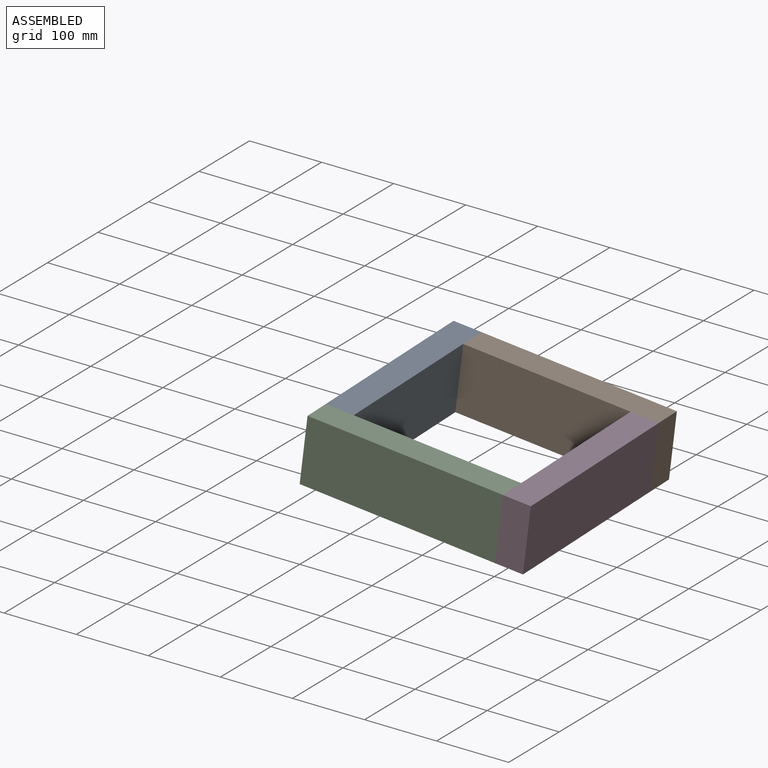
[diagram: assembled view]
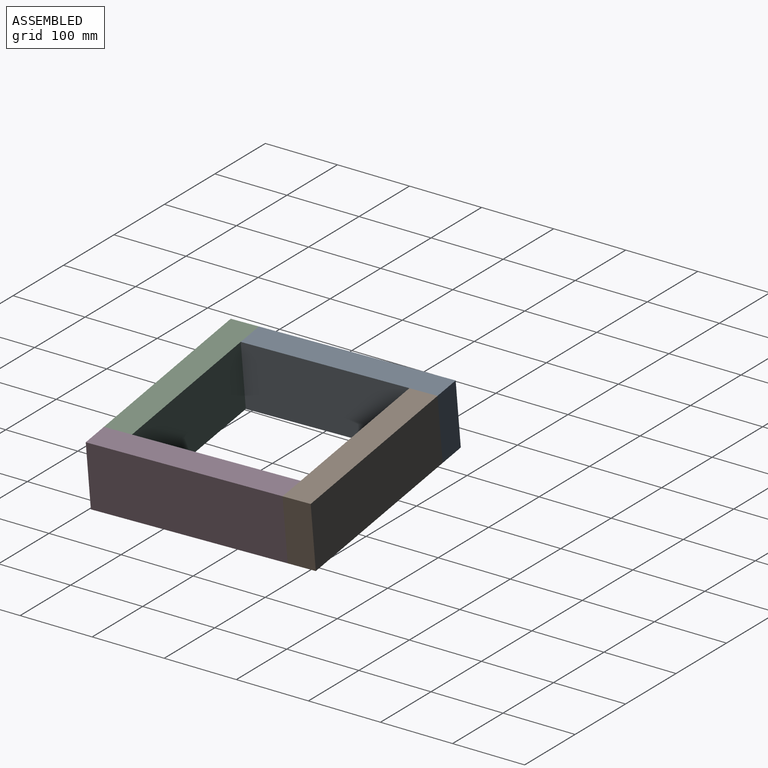
[diagram: assembled view, second angle]
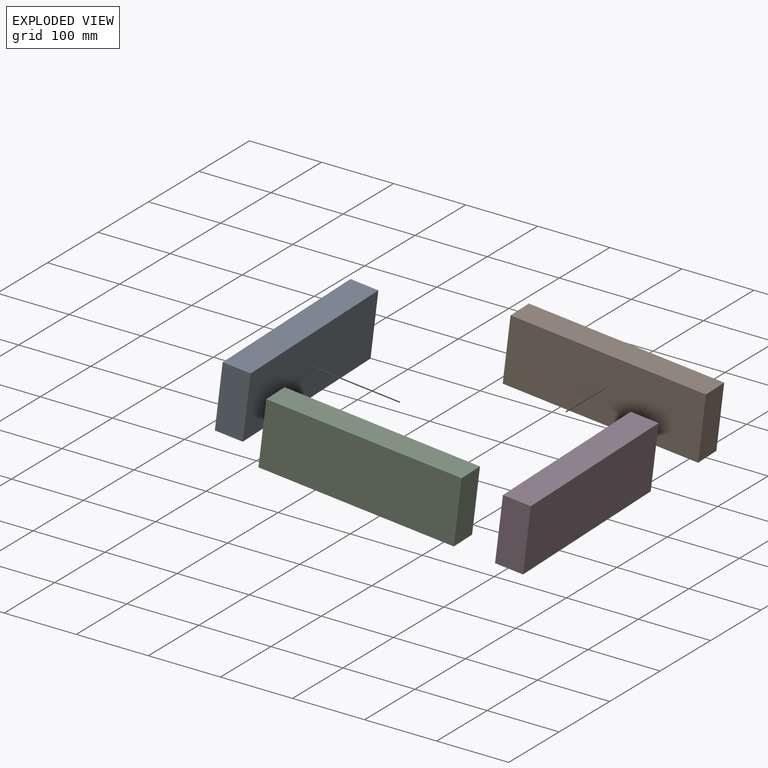
[diagram: exploded view]
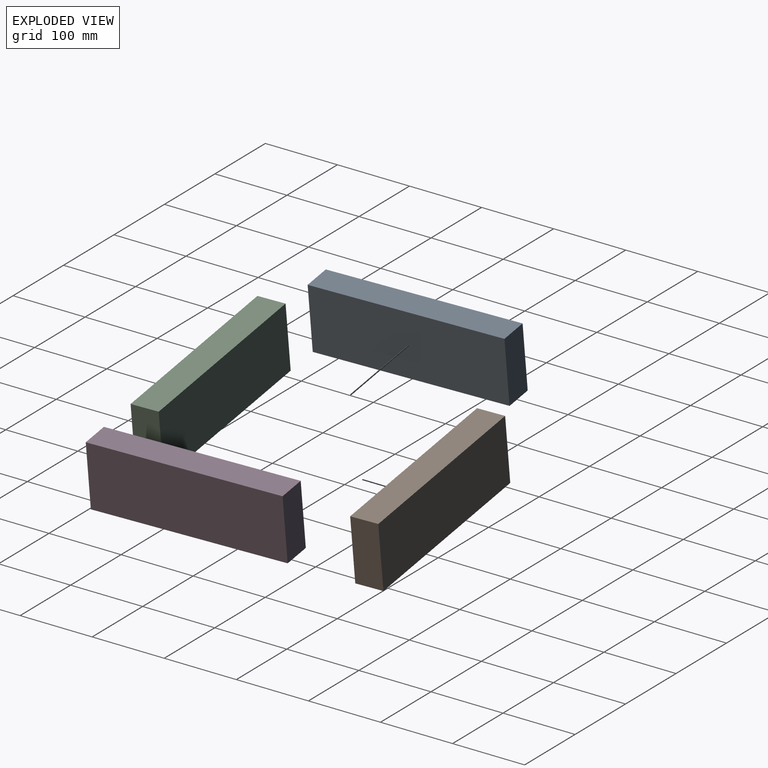
[diagram: exploded view, second angle]
ASSEMBLY  parts=4 mates=3
PART A: 6 faces, bbox 88.9x266.7x38.1 mm
  f0: plane 266.7x38.1mm, normal (-1,0,0), area 10161.3mm2, adj f1,f3,f4,f5
  f1: plane 266.7x88.9mm, normal (0,0,-1), area 23709.6mm2, adj f0,f2,f4,f5
  f2: plane 266.7x38.1mm, normal (1,0,0), area 10161.3mm2, adj f1,f3,f4,f5
  f3: plane 266.7x88.9mm, normal (0,0,1), area 23709.6mm2, adj f0,f2,f4,f5
  f4: plane 88.9x38.1mm, normal (0,-1,0), area 3387.1mm2, adj f0,f1,f2,f3
  f5: plane 88.9x38.1mm, normal (0,1,0), area 3387.1mm2, adj f0,f1,f2,f3
PART B: same geometry as A
PART C: same geometry as A
PART D: same geometry as A
PLACE A rot(axis=(0.02,-1,0.02),83.1deg) t=(-143.05,206.06,90.31)mm
PLACE B rot(axis=(0.63,-0.54,0.56),117.2deg) t=(-143.05,206.06,90.31)mm
PLACE C rot(axis=(-0.62,-0.57,-0.55),115deg) t=(94.43,-90.6,62.87)mm
PLACE D rot(axis=(-0.75,-0.01,-0.66),178.7deg) t=(94.43,-90.6,62.87)mm
MATE fastened C.f5 <-> D.f1  axis (0.99,0.03,-0.12) through (105.1,-90.23,151.13)mm
MATE fastened B.f5 <-> A.f1  axis (-0.99,-0.03,0.12) through (-132.39,206.43,178.56)mm
MATE fastened D.f4 <-> B.f3  axis (-0.04,1,0) through (133.55,177.63,146.56)mm
